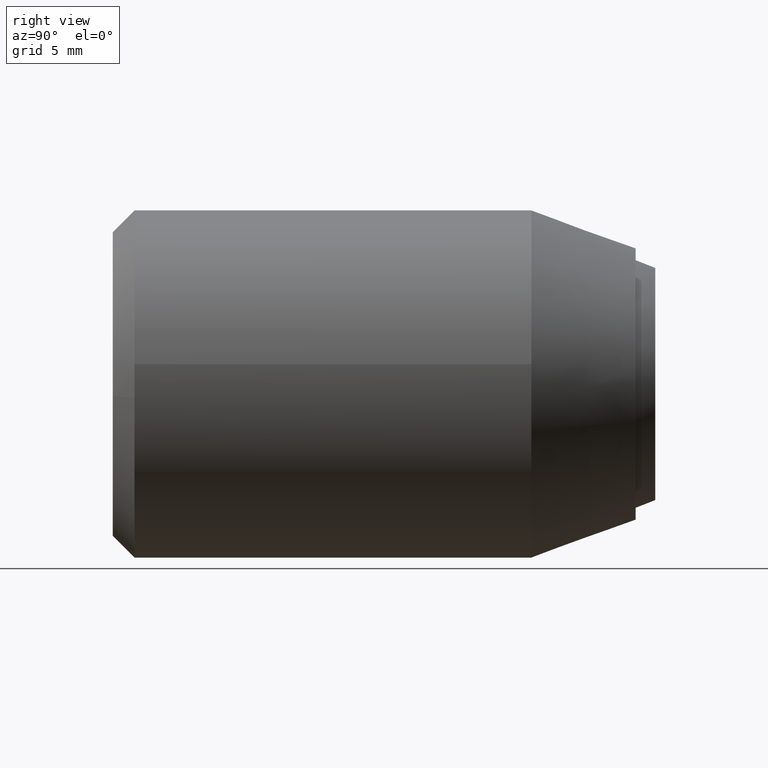
[diagram: clean part render]
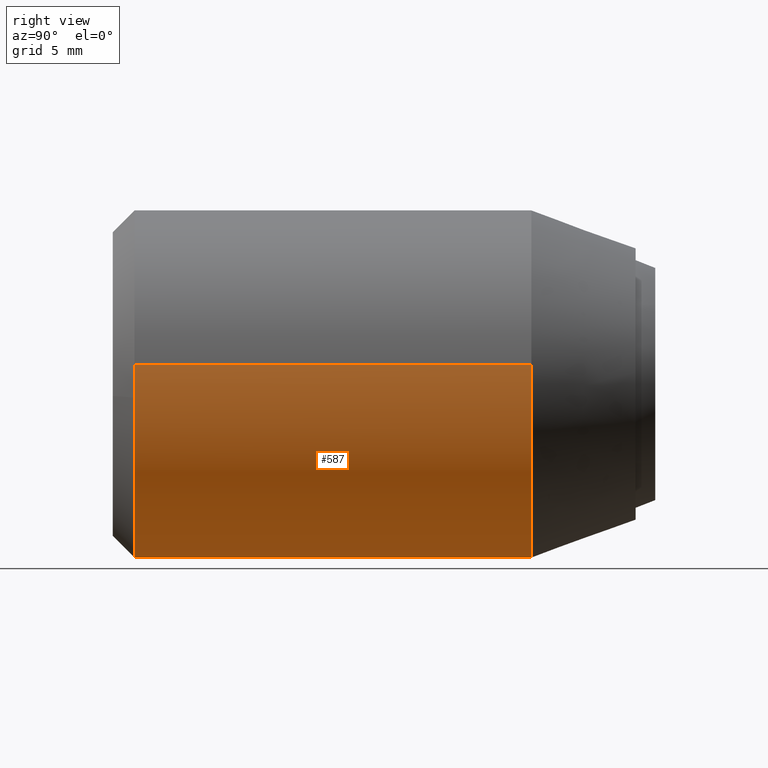
[diagram: same view with one face highlighted and labeled with its STEP entity id]
A machine part, right view. The second image highlights one B-rep face of the part: STEP entity #587.
In plain terms, the highlighted face is a freeform B-spline surface patch.
Its self-contained STEP definition (entity closure, byte-faithful):
#305=CARTESIAN_POINT('',(-7.985078611291660,-4.808085996040576,0.488384631610957));
#306=VERTEX_POINT('',#305);
#327=CARTESIAN_POINT('',(7.947753822738545,-4.808085999999999,0.912802921302848));
#328=VERTEX_POINT('',#327);
#342=CARTESIAN_POINT('',(0.0,-4.808085999999999,-8.000000000000002));
#343=VERTEX_POINT('',#342);
#344=CARTESIAN_POINT('',(0.0,-4.808085999999999,-8.000000000000002));
#345=CARTESIAN_POINT('',(8.0,-4.808086000000000,-8.000000000000002));
#346=CARTESIAN_POINT('',(8.0,-4.808085999999999,-1.291960E-015));
#347=CARTESIAN_POINT('',(8.0,-4.808086000000000,0.457896670063406));
#348=CARTESIAN_POINT('',(7.947753822738544,-4.808086000000000,0.912802921302848));
#356=(BOUNDED_CURVE()B_SPLINE_CURVE(2,(#344,#345,#346,#347,#348),.UNSPECIFIED.,.F.,.U.)B_SPLINE_CURVE_WITH_KNOTS((3,2,3),(0.0,0.250000000000000,0.269767704844007),.UNSPECIFIED.)CURVE()GEOMETRIC_REPRESENTATION_ITEM()RATIONAL_B_SPLINE_CURVE((1.0,0.707106781186548,1.0,0.976840693198738,0.957343837127389))REPRESENTATION_ITEM(''));
#357=EDGE_CURVE('',#343,#328,#356,.T.);
#359=CARTESIAN_POINT('',(-6.487788583764719,-4.808086000000214,-4.680662270702025));
#360=VERTEX_POINT('',#359);
#361=CARTESIAN_POINT('',(-6.487788583764719,-4.808086000000214,-4.680662270702026));
#362=CARTESIAN_POINT('',(-4.093028231657743,-4.808085999999999,-8.000000000000002));
#363=CARTESIAN_POINT('',(0.0,-4.808085999999999,-8.000000000000002));
#371=(BOUNDED_CURVE()B_SPLINE_CURVE(2,(#361,#362,#363),.UNSPECIFIED.,.F.,.U.)B_SPLINE_CURVE_WITH_KNOTS((3,3),(0.850743050382079,1.0),.UNSPECIFIED.)CURVE()GEOMETRIC_REPRESENTATION_ITEM()RATIONAL_B_SPLINE_CURVE((0.859068214727309,0.825134606384519,1.0))REPRESENTATION_ITEM(''));
#372=EDGE_CURVE('',#360,#343,#371,.T.);
#412=CARTESIAN_POINT('',(-7.985078611291660,-4.808085996040576,0.488384631610957));
#413=CARTESIAN_POINT('',(-8.0,-4.808085999999999,0.244420258933266));
#414=CARTESIAN_POINT('',(-8.0,-4.808085999999999,-1.291960E-015));
#415=CARTESIAN_POINT('',(-8.0,-4.808085999999999,-2.584611029428961));
#416=CARTESIAN_POINT('',(-6.487788583764719,-4.808086000000214,-4.680662270702025));
#424=(BOUNDED_CURVE()B_SPLINE_CURVE(2,(#412,#413,#414,#415,#416),.UNSPECIFIED.,.F.,.U.)B_SPLINE_CURVE_WITH_KNOTS((3,2,3),(0.739333041860781,0.750000000000000,0.850743050382080),.UNSPECIFIED.)CURVE()GEOMETRIC_REPRESENTATION_ITEM()RATIONAL_B_SPLINE_CURVE((0.976072212311532,0.987502881182623,1.0,0.881972174802028,0.859068214727308))REPRESENTATION_ITEM(''));
#425=EDGE_CURVE('',#306,#360,#424,.T.);
#449=CARTESIAN_POINT('',(7.947753547484348,-23.100000000000001,0.912805317934730));
#450=VERTEX_POINT('',#449);
#466=CARTESIAN_POINT('',(7.947753822738545,-4.808085999999999,0.912802921302848));
#467=CARTESIAN_POINT('',(7.947753547484348,-23.100000000000001,0.912805317934730));
#468=QUASI_UNIFORM_CURVE('',1,(#466,#467),.UNSPECIFIED.,.F.,.U.);
#469=EDGE_CURVE('',#328,#450,#468,.T.);
#473=CARTESIAN_POINT('',(-7.985078433277944,-23.099999999999991,0.488387565770133));
#474=VERTEX_POINT('',#473);
#475=CARTESIAN_POINT('',(-7.985078611291660,-4.808085996040576,0.488384631610957));
#476=CARTESIAN_POINT('',(-7.985078433277944,-23.099999999999991,0.488387565770133));
#477=QUASI_UNIFORM_CURVE('',1,(#475,#476),.UNSPECIFIED.,.F.,.U.);
#478=EDGE_CURVE('',#306,#474,#477,.T.);
#511=CARTESIAN_POINT('',(-7.985078387374934,-4.350788149999998,0.488388316278855));
#512=CARTESIAN_POINT('',(-8.473466703653790,-4.350788149999999,-7.496690071096079));
#513=CARTESIAN_POINT('',(-0.488388316278856,-4.350788149999998,-7.985078387374935));
#514=CARTESIAN_POINT('',(7.496690071096078,-4.350788149999999,-8.473466703653791));
#515=CARTESIAN_POINT('',(7.985078387374934,-4.350788149999998,-0.488388316278857));
#516=CARTESIAN_POINT('',(8.028029107158222,-4.350788149999998,0.213849744772372));
#517=CARTESIAN_POINT('',(7.947753547485708,-4.350788149999998,0.912805317922882));
#518=CARTESIAN_POINT('',(-7.985078387374934,-23.568730296249999,0.488388316278855));
#519=CARTESIAN_POINT('',(-8.473466703653790,-23.568730296249999,-7.496690071096079));
#520=CARTESIAN_POINT('',(-0.488388316278856,-23.568730296249999,-7.985078387374935));
#521=CARTESIAN_POINT('',(7.496690071096078,-23.568730296249999,-8.473466703653791));
#522=CARTESIAN_POINT('',(7.985078387374934,-23.568730296249999,-0.488388316278857));
#523=CARTESIAN_POINT('',(8.028029107158222,-23.568730296249999,0.213849744772372));
#524=CARTESIAN_POINT('',(7.947753547485708,-23.568730296249999,0.912805317922882));
#532=(BOUNDED_SURFACE()B_SPLINE_SURFACE(2,1,((#511,#518),(#512,#519),(#513,#520),(#514,#521),(#515,#522),(#516,#523),(#517,#524)),.UNSPECIFIED.,.F.,.F.,.U.)B_SPLINE_SURFACE_WITH_KNOTS((3,2,2,3),(2,2),(0.0,13.254833995939039,26.509667991878079,28.100248071390759),(0.0,19.217942146250000),.UNSPECIFIED.)GEOMETRIC_REPRESENTATION_ITEM()RATIONAL_B_SPLINE_SURFACE(((1.0,1.0),(0.707106781186548,0.707106781186548),(1.0,1.0),(0.707106781186548,0.707106781186548),(1.0,1.0),(0.964852813742386,0.964852813742386),(0.938140952186599,0.938140952186599)))REPRESENTATION_ITEM('')SURFACE());
#533=CARTESIAN_POINT('',(7.975338669865066,-23.099999999999898,-0.627672765823567));
#534=VERTEX_POINT('',#533);
#535=CARTESIAN_POINT('',(7.975338669865066,-23.099999999999891,-0.627672765823567));
#536=CARTESIAN_POINT('',(8.000000000000002,-23.100000000000001,-0.314320856062158));
#537=CARTESIAN_POINT('',(8.0,-23.100000000000001,-1.291960E-015));
#538=CARTESIAN_POINT('',(8.0,-23.099999999999998,0.457897880214305));
#539=CARTESIAN_POINT('',(7.947753547484348,-23.100000000000001,0.912805317934730));
#547=(BOUNDED_CURVE()B_SPLINE_CURVE(2,(#535,#536,#537,#538,#539),.UNSPECIFIED.,.F.,.U.)B_SPLINE_CURVE_WITH_KNOTS((3,2,3),(0.236331300632733,0.250000000000000,0.269767755877114),.UNSPECIFIED.)CURVE()GEOMETRIC_REPRESENTATION_ITEM()RATIONAL_B_SPLINE_CURVE((0.969723356171744,0.983986122581311,1.0,0.976840633409734,0.957343736459668))REPRESENTATION_ITEM(''));
#548=EDGE_CURVE('',#534,#450,#547,.T.);
#549=ORIENTED_EDGE('',*,*,#548,.F.);
#550=CARTESIAN_POINT('',(0.0,-23.100000000000001,-8.000000000000002));
#551=VERTEX_POINT('',#550);
#552=CARTESIAN_POINT('',(0.0,-23.100000000000001,-8.000000000000002));
#553=CARTESIAN_POINT('',(7.395123933264179,-23.099999999999998,-8.000000000000002));
#554=CARTESIAN_POINT('',(7.975338669865066,-23.099999999999898,-0.627672765823567));
#562=(BOUNDED_CURVE()B_SPLINE_CURVE(2,(#552,#553,#554),.UNSPECIFIED.,.F.,.U.)B_SPLINE_CURVE_WITH_KNOTS((3,3),(0.0,0.236331300632733),.UNSPECIFIED.)CURVE()GEOMETRIC_REPRESENTATION_ITEM()RATIONAL_B_SPLINE_CURVE((1.0,0.723120658605237,0.969723356171744))REPRESENTATION_ITEM(''));
#563=EDGE_CURVE('',#551,#534,#562,.T.);
#564=ORIENTED_EDGE('',*,*,#563,.F.);
#565=CARTESIAN_POINT('',(-7.985078433277944,-23.099999999999994,0.488387565770133));
#566=CARTESIAN_POINT('',(-8.0,-23.099999999999998,0.244421353775641));
#567=CARTESIAN_POINT('',(-8.0,-23.100000000000001,-1.291960E-015));
#568=CARTESIAN_POINT('',(-8.0,-23.100000000000001,-8.000000000000002));
#569=CARTESIAN_POINT('',(0.0,-23.100000000000001,-8.000000000000002));
#577=(BOUNDED_CURVE()B_SPLINE_CURVE(2,(#565,#566,#567,#568,#569),.UNSPECIFIED.,.F.,.U.)B_SPLINE_CURVE_WITH_KNOTS((3,2,3),(0.739332994676935,0.750000000000000,1.0),.UNSPECIFIED.)CURVE()GEOMETRIC_REPRESENTATION_ITEM()RATIONAL_B_SPLINE_CURVE((0.976072111187519,0.987502825903309,1.0,0.707106781186548,1.0))REPRESENTATION_ITEM(''));
#578=EDGE_CURVE('',#474,#551,#577,.T.);
#579=ORIENTED_EDGE('',*,*,#578,.F.);
#580=ORIENTED_EDGE('',*,*,#478,.F.);
#581=ORIENTED_EDGE('',*,*,#425,.T.);
#582=ORIENTED_EDGE('',*,*,#372,.T.);
#583=ORIENTED_EDGE('',*,*,#357,.T.);
#584=ORIENTED_EDGE('',*,*,#469,.T.);
#585=EDGE_LOOP('',(#549,#564,#579,#580,#581,#582,#583,#584));
#586=FACE_OUTER_BOUND('',#585,.T.);
#587=ADVANCED_FACE('',(#586),#532,.T.);